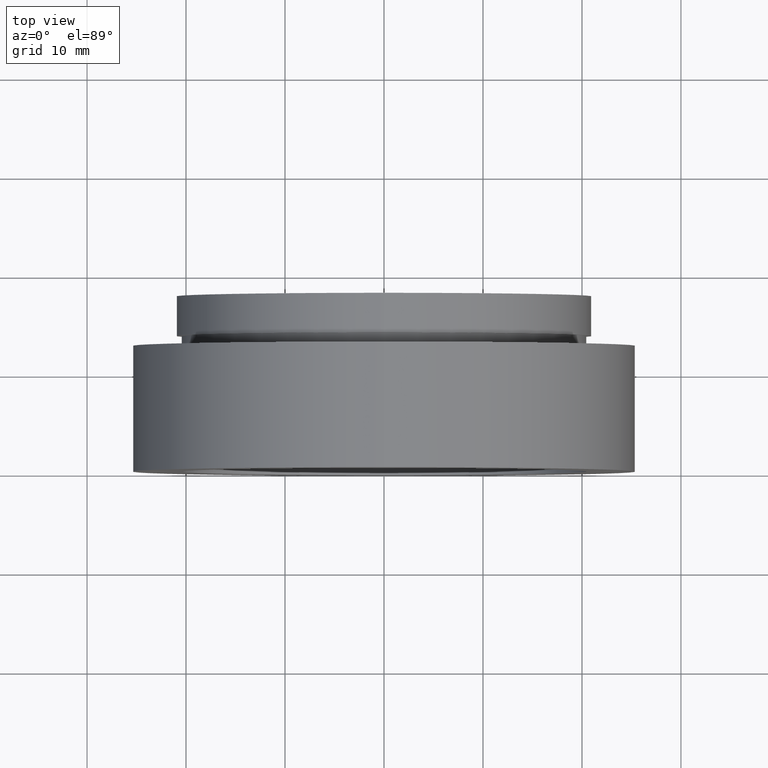
[diagram: clean part render]
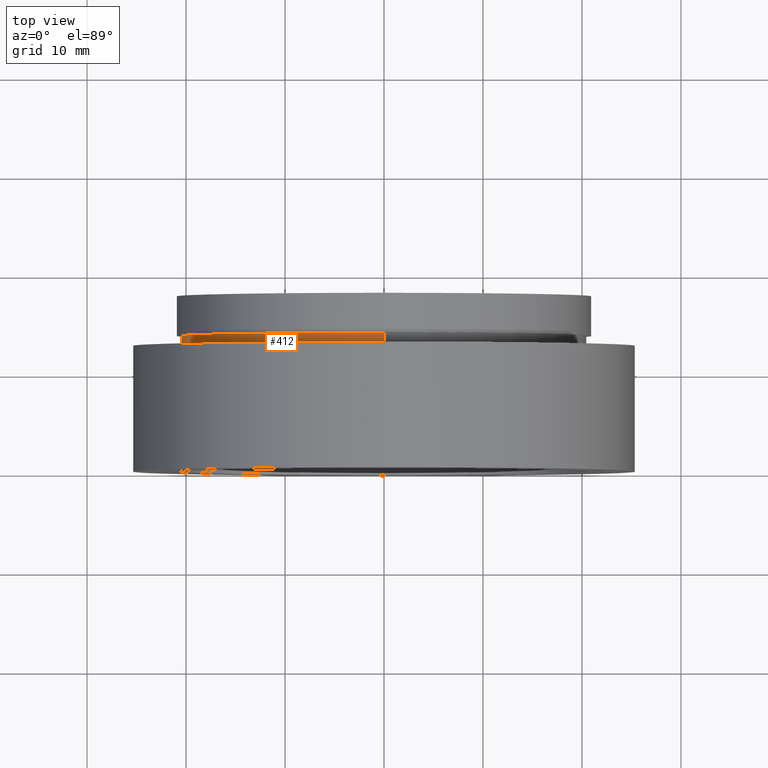
[diagram: same view with one face highlighted and labeled with its STEP entity id]
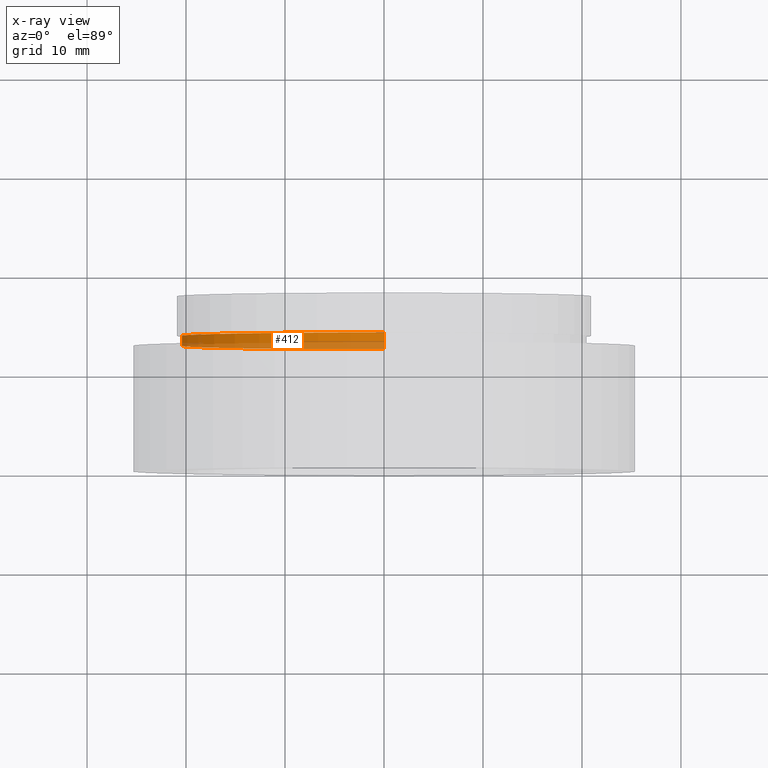
[diagram: x-ray of the same camera — body ghosted, the highlighted face saturated]
A machine part, top view. The second image highlights one B-rep face of the part: STEP entity #412.
The next image is the same camera in x-ray: the body ghosted, the highlighted face saturated — about 37% of this face is hidden behind the body in this view.
In plain terms, the highlighted cylindrical surface (partial cylindrical patch) has radius 20.5 mm, axis along (-0, 1, -0).
Its self-contained STEP definition (entity closure, byte-faithful):
#10 = CIRCLE ( 'NONE', #569, 20.50000000000001800 ) ;
#38 = CARTESIAN_POINT ( 'NONE',  ( 2.510525938252076100E-015, 161.3761669434274500, -20.50000000000001800 ) ) ;
#56 = DIRECTION ( 'NONE',  ( -0.0000000000000000000, 1.000000000000000000, -0.0000000000000000000 ) ) ;
#63 = CIRCLE ( 'NONE', #425, 20.50000000000001800 ) ;
#65 = EDGE_CURVE ( 'NONE', #330, #178, #63, .T. ) ;
#69 = DIRECTION ( 'NONE',  ( 0.0000000000000000000, 0.0000000000000000000, 1.000000000000000000 ) ) ;
#73 = ORIENTED_EDGE ( 'NONE', *, *, #65, .F. ) ;
#144 = DIRECTION ( 'NONE',  ( -0.0000000000000000000, 1.000000000000000000, -0.0000000000000000000 ) ) ;
#172 = ORIENTED_EDGE ( 'NONE', *, *, #323, .T. ) ;
#178 = VERTEX_POINT ( 'NONE', #562 ) ;
#188 = DIRECTION ( 'NONE',  ( -0.0000000000000000000, 1.000000000000000000, -0.0000000000000000000 ) ) ;
#209 = LINE ( 'NONE', #38, #244 ) ;
#221 = VERTEX_POINT ( 'NONE', #474 ) ;
#230 = DIRECTION ( 'NONE',  ( 0.0000000000000000000, 0.0000000000000000000, 1.000000000000000000 ) ) ;
#242 = CARTESIAN_POINT ( 'NONE',  ( 2.510525938252076100E-015, 13.69999999999999000, -20.50000000000001800 ) ) ;
#244 = VECTOR ( 'NONE', #144, 1000.000000000000000 ) ;
#254 = EDGE_CURVE ( 'NONE', #221, #330, #209, .T. ) ;
#282 = DIRECTION ( 'NONE',  ( 0.0000000000000000000, 0.0000000000000000000, 1.000000000000000000 ) ) ;
#288 = CARTESIAN_POINT ( 'NONE',  ( 0.0000000000000000000, 161.3761669434274500, 0.0000000000000000000 ) ) ;
#308 = CARTESIAN_POINT ( 'NONE',  ( 0.0000000000000000000, 13.69999999999999000, 0.0000000000000000000 ) ) ;
#323 = EDGE_CURVE ( 'NONE', #472, #178, #360, .T. ) ;
#330 = VERTEX_POINT ( 'NONE', #242 ) ;
#337 = CARTESIAN_POINT ( 'NONE',  ( 0.0000000000000000000, 161.3761669434274500, 20.50000000000001800 ) ) ;
#341 = CYLINDRICAL_SURFACE ( 'NONE', #375, 20.50000000000001800 ) ;
#343 = DIRECTION ( 'NONE',  ( -0.0000000000000000000, 1.000000000000000000, -0.0000000000000000000 ) ) ;
#359 = DIRECTION ( 'NONE',  ( -0.0000000000000000000, 1.000000000000000000, -0.0000000000000000000 ) ) ;
#360 = LINE ( 'NONE', #337, #586 ) ;
#375 = AXIS2_PLACEMENT_3D ( 'NONE', #288, #188, #282 ) ;
#382 = ORIENTED_EDGE ( 'NONE', *, *, #583, .T. ) ;
#384 = CARTESIAN_POINT ( 'NONE',  ( 0.0000000000000000000, 12.69999999999998900, 0.0000000000000000000 ) ) ;
#412 = ADVANCED_FACE ( 'NONE', ( #504 ), #341, .T. ) ;
#425 = AXIS2_PLACEMENT_3D ( 'NONE', #308, #359, #69 ) ;
#472 = VERTEX_POINT ( 'NONE', #621 ) ;
#474 = CARTESIAN_POINT ( 'NONE',  ( 2.510525938252076100E-015, 12.69999999999998900, -20.50000000000001800 ) ) ;
#504 = FACE_OUTER_BOUND ( 'NONE', #577, .T. ) ;
#562 = CARTESIAN_POINT ( 'NONE',  ( 0.0000000000000000000, 13.69999999999999000, 20.50000000000001800 ) ) ;
#569 = AXIS2_PLACEMENT_3D ( 'NONE', #384, #56, #230 ) ;
#577 = EDGE_LOOP ( 'NONE', ( #605, #382, #172, #73 ) ) ;
#583 = EDGE_CURVE ( 'NONE', #221, #472, #10, .T. ) ;
#586 = VECTOR ( 'NONE', #343, 1000.000000000000000 ) ;
#605 = ORIENTED_EDGE ( 'NONE', *, *, #254, .F. ) ;
#621 = CARTESIAN_POINT ( 'NONE',  ( 0.0000000000000000000, 12.69999999999998900, 20.50000000000001800 ) ) ;